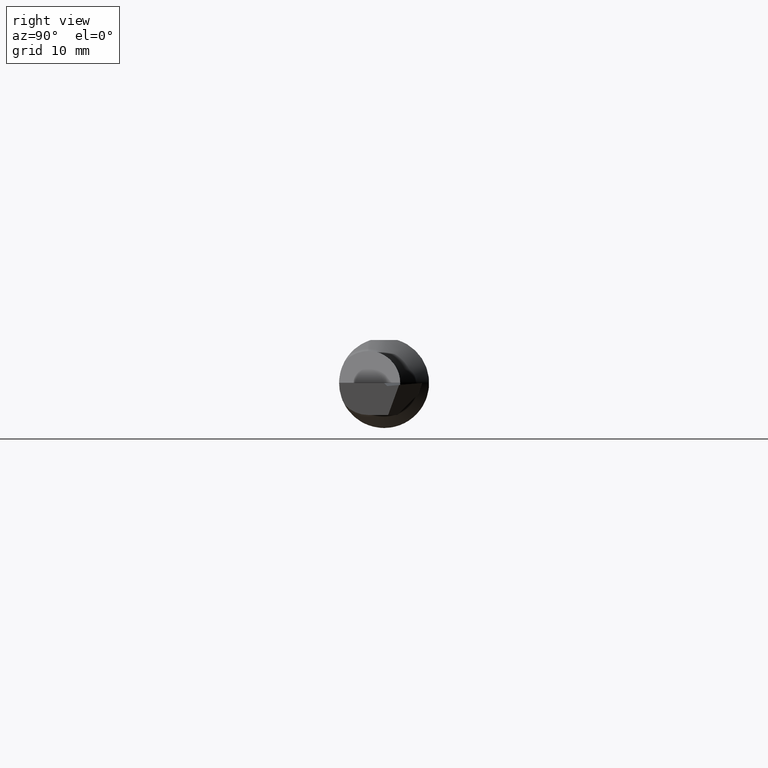
[diagram: clean part render]
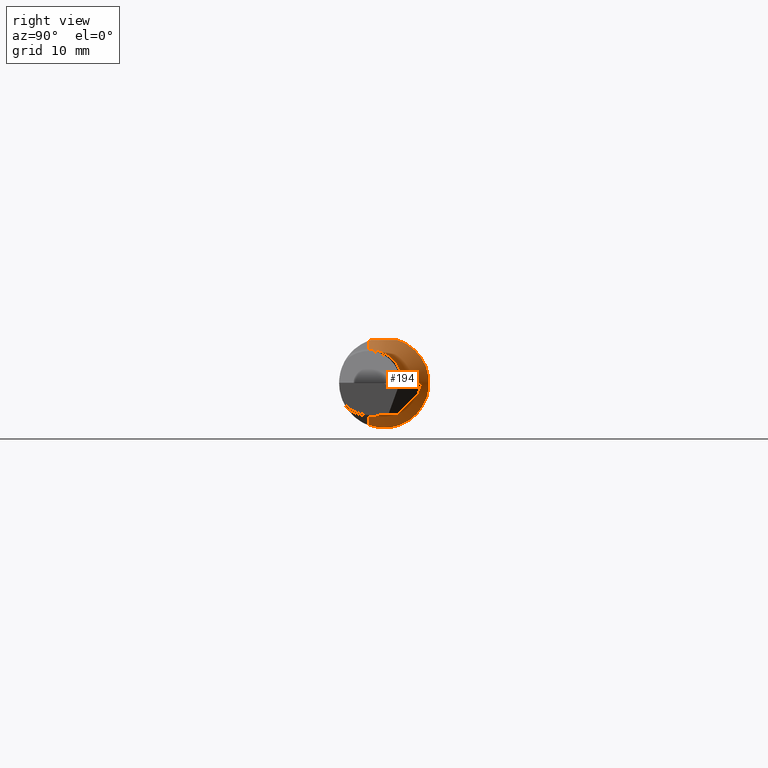
[diagram: same view with one face highlighted and labeled with its STEP entity id]
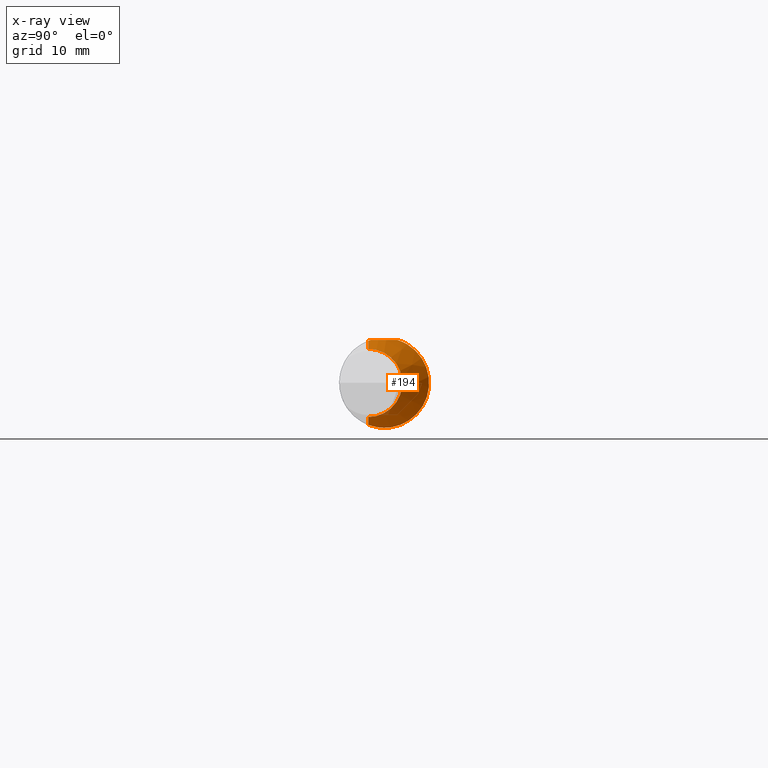
[diagram: x-ray of the same camera — body ghosted, the highlighted face saturated]
A machine part, right view. The second image highlights one B-rep face of the part: STEP entity #194.
The next image is the same camera in x-ray: the body ghosted, the highlighted face saturated — about 19% of this face is hidden behind the body in this view.
In plain terms, the highlighted conical surface has half-angle 45 deg.
Its self-contained STEP definition (entity closure, byte-faithful):
#49 = CARTESIAN_POINT ( 'NONE',  ( 1.369947954481972152, -0.05509999999999988518, -0.1460520455180277233 ) ) ;
#50 = ORIENTED_EDGE ( 'NONE', *, *, #137, .T. ) ;
#52 = CARTESIAN_POINT ( 'NONE',  ( 1.366635871238674582, -0.04622120725381386602, 0.1490999999999999270 ) ) ;
#62 = CARTESIAN_POINT ( 'NONE',  ( 1.324548691111764764, 0.08387758383247832794, 0.1320588108186686593 ) ) ;
#64 = CARTESIAN_POINT ( 'NONE',  ( 1.367743472878949706, -0.04922367465879127352, 0.1481692309309302902 ) ) ;
#66 = CARTESIAN_POINT ( 'NONE',  ( 1.332717130590346910, 0.05608262143449922743, 0.1460429478963033156 ) ) ;
#68 = VERTEX_POINT ( 'NONE', #142 ) ;
#70 = CIRCLE ( 'NONE', #770, 0.1183223304703364259 ) ;
#79 = CARTESIAN_POINT ( 'NONE',  ( 1.308238439965468070, 0.1430193460246382831, -0.06343701998802300790 ) ) ;
#84 = CARTESIAN_POINT ( 'NONE',  ( 1.336370617195300259, 0.04404636233410041263, -0.1501015177063665662 ) ) ;
#123 = CARTESIAN_POINT ( 'NONE',  ( 1.362876243189713676, -0.03601116808314813733, -0.1522199949055717816 ) ) ;
#127 = CARTESIAN_POINT ( 'NONE',  ( 1.204999999999998073, -0.05509999999999982967, 0.3109999999999998321 ) ) ;
#136 = DIRECTION ( 'NONE',  ( 0.000000000000000000, 0.000000000000000000, 1.000000000000000000 ) ) ;
#137 = EDGE_CURVE ( 'NONE', #336, #1004, #70, .T. ) ;
#142 = CARTESIAN_POINT ( 'NONE',  ( 1.366635871238674582, -0.04622120725381386602, 0.1490999999999999270 ) ) ;
#153 = EDGE_CURVE ( 'NONE', #68, #949, #479, .T. ) ;
#156 = CARTESIAN_POINT ( 'NONE',  ( 1.204999999999998073, -0.05509999999999982967, 0.000000000000000000 ) ) ;
#171 = CARTESIAN_POINT ( 'NONE',  ( 1.350825235768600363, 0.01741984689341649281, 0.1490999999999998993 ) ) ;
#194 = ADVANCED_FACE ( 'NONE', ( #366 ), #602, .T. ) ;
#200 = CARTESIAN_POINT ( 'NONE',  ( 1.204999999999998073, -0.05509999999999979498, -0.3109999999999998321 ) ) ;
#205 = AXIS2_PLACEMENT_3D ( 'NONE', #156, #548, #253 ) ;
#213 = CARTESIAN_POINT ( 'NONE',  ( 1.352444014235175240, -0.006023535698148726331, -0.1563110501433992716 ) ) ;
#225 = VECTOR ( 'NONE', #451, 39.37007874015748143 ) ;
#230 = CARTESIAN_POINT ( 'NONE',  ( 1.322111493183075304, 0.09241859738491080278, 0.1262303666906479382 ) ) ;
#249 = CARTESIAN_POINT ( 'NONE',  ( 1.364992327536548533, -0.02989759620680065844, 0.1490999999999999270 ) ) ;
#251 = CARTESIAN_POINT ( 'NONE',  ( 1.333366277754984841, 0.05393928263266121320, -0.1468426572203956615 ) ) ;
#253 = DIRECTION ( 'NONE',  ( 0.000000000000000000, 0.000000000000000000, 1.000000000000000000 ) ) ;
#272 = EDGE_CURVE ( 'NONE', #390, #68, #752, .T. ) ;
#275 = VECTOR ( 'NONE', #610, 39.37007874015748143 ) ;
#304 = CARTESIAN_POINT ( 'NONE',  ( 1.335731319860130828, 0.04622120725381387296, 0.1490999999999999270 ) ) ;
#321 = CARTESIAN_POINT ( 'NONE',  ( 1.304825678371061226, 0.1560001080571325471, -0.01202898505658657122 ) ) ;
#336 = VERTEX_POINT ( 'NONE', #662 ) ;
#366 = FACE_OUTER_BOUND ( 'NONE', #789, .T. ) ;
#382 = CARTESIAN_POINT ( 'NONE',  ( 1.306943772126054615, 0.1479197732258280551, 0.05098120130938362665 ) ) ;
#390 = VERTEX_POINT ( 'NONE', #430 ) ;
#393 = CARTESIAN_POINT ( 'NONE',  ( 1.361455283410027306, -0.01367641444778829041, 0.1490999999999999548 ) ) ;
#401 = CARTESIAN_POINT ( 'NONE',  ( 1.315588306671178431, 0.1157756030439725942, 0.1052293854065042000 ) ) ;
#407 = CARTESIAN_POINT ( 'NONE',  ( 1.327799391749285407, 0.07267242641550480942, -0.1385313344675339065 ) ) ;
#426 = VERTEX_POINT ( 'NONE', #917 ) ;
#430 = CARTESIAN_POINT ( 'NONE',  ( 1.335731319860130828, 0.04622120725381387296, 0.1490999999999999270 ) ) ;
#451 = DIRECTION ( 'NONE',  ( -0.7071067811865514585, 8.659560562354884787E-17, -0.7071067811865435759 ) ) ;
#461 = EDGE_CURVE ( 'NONE', #1004, #426, #920, .T. ) ;
#475 = B_SPLINE_CURVE_WITH_KNOTS ( 'NONE', 3,
 ( #49, #846, #123, #933, #213, #528, #849, #84, #251, #407, #797, #1045, #546, #869, #875, #950, #79, #713, #803, #321, #787, #643, #725, #382, #882, #1032, #567, #401, #649, #230, #62, #485, #66, #304 ),
 .UNSPECIFIED., .F., .F.,
 ( 4, 2, 2, 2, 2, 2, 2, 2, 2, 2, 2, 2, 2, 2, 2, 2, 4 ),
 ( 0.002933762473820768560, 0.003742031587728699305, 0.004550300701636630918, 0.005358569815544561230, 0.006166838929452493276, 0.006975108043360423588, 0.007783377157268354767, 0.008591646271176284211, 0.009399915385084216257, 0.01020818449899214657, 0.01101645361290007688, 0.01182472272680800719, 0.01263299184071593924, 0.01344126095462386955, 0.01424953006853179986, 0.01505779918243973191, 0.01586606829634766222 ),
 .UNSPECIFIED. ) ;
#477 = CARTESIAN_POINT ( 'NONE',  ( 1.335731319860130828, 0.04622120725381387296, 0.1490999999999999270 ) ) ;
#479 = B_SPLINE_CURVE_WITH_KNOTS ( 'NONE', 3,
 ( #52, #64, #843, #856 ),
 .UNSPECIFIED., .F., .F.,
 ( 4, 4 ),
 ( 7.061912593287633053E-07, 0.0002510725968033621254 ),
 .UNSPECIFIED. ) ;
#485 = CARTESIAN_POINT ( 'NONE',  ( 1.329868065766410368, 0.06565156991703995082, 0.1420029927566434647 ) ) ;
#515 = CARTESIAN_POINT ( 'NONE',  ( 1.369947954481972152, -0.05510000000000016968, 0.1460520455180288335 ) ) ;
#528 = CARTESIAN_POINT ( 'NONE',  ( 1.345770450437745680, 0.01419006742947593290, -0.1557821214568157198 ) ) ;
#535 = CARTESIAN_POINT ( 'NONE',  ( 1.397677669529663769, -0.05509999999999982967, 0.000000000000000000 ) ) ;
#536 = EDGE_CURVE ( 'NONE', #336, #949, #1013, .T. ) ;
#546 = CARTESIAN_POINT ( 'NONE',  ( 1.318136278873995204, 0.1065604417534539439, -0.1145449302933602004 ) ) ;
#548 = DIRECTION ( 'NONE',  ( -1.000000000000000000, -0.000000000000000000, -0.000000000000000000 ) ) ;
#561 = ORIENTED_EDGE ( 'NONE', *, *, #153, .T. ) ;
#567 = CARTESIAN_POINT ( 'NONE',  ( 1.312035635856389382, 0.1288120369603221183, 0.08879568090486569809 ) ) ;
#602 = CONICAL_SURFACE ( 'NONE', #205, 0.3109999999999998321, 0.7853981633974427279 ) ;
#610 = DIRECTION ( 'NONE',  ( -0.7071067811865514585, 0.000000000000000000, 0.7071067811865435759 ) ) ;
#632 = CARTESIAN_POINT ( 'NONE',  ( 1.343705498961929035, 0.03203370612900885428, 0.1490999999999999270 ) ) ;
#637 = ORIENTED_EDGE ( 'NONE', *, *, #272, .T. ) ;
#641 = EDGE_CURVE ( 'NONE', #426, #390, #475, .T. ) ;
#643 = CARTESIAN_POINT ( 'NONE',  ( 1.305035562186708686, 0.1551973409643579715, 0.01987069930676312393 ) ) ;
#649 = CARTESIAN_POINT ( 'NONE',  ( 1.317637727932546188, 0.1083427162965807794, 0.1128590202107402907 ) ) ;
#662 = CARTESIAN_POINT ( 'NONE',  ( 1.397677669529663769, -0.05509999999999982967, 0.1183223304703364259 ) ) ;
#689 = ORIENTED_EDGE ( 'NONE', *, *, #641, .T. ) ;
#709 = CARTESIAN_POINT ( 'NONE',  ( 1.366635871238674582, -0.04622120725381386602, 0.1490999999999999270 ) ) ;
#713 = CARTESIAN_POINT ( 'NONE',  ( 1.306326481736836076, 0.1502618000434304268, -0.04359105745430099516 ) ) ;
#725 = CARTESIAN_POINT ( 'NONE',  ( 1.305491321236808888, 0.1534496953831913368, 0.03053740632296880753 ) ) ;
#752 = B_SPLINE_CURVE_WITH_KNOTS ( 'NONE', 3,
 ( #477, #632, #171, #972, #393, #249, #800, #709 ),
 .UNSPECIFIED., .F., .F.,
 ( 4, 2, 2, 4 ),
 ( 0.004170257919704616414, 0.005419282688077418919, 0.006043795072263820171, 0.006668307456450221424 ),
 .UNSPECIFIED. ) ;
#770 = AXIS2_PLACEMENT_3D ( 'NONE', #535, #1010, #136 ) ;
#783 = ORIENTED_EDGE ( 'NONE', *, *, #461, .T. ) ;
#787 = CARTESIAN_POINT ( 'NONE',  ( 1.304706639062241935, 0.1564576890087830685, -0.001432090562047936633 ) ) ;
#789 = EDGE_LOOP ( 'NONE', ( #50, #783, #689, #637, #561, #855 ) ) ;
#797 = CARTESIAN_POINT ( 'NONE',  ( 1.325205725379794641, 0.08160962841902985598, -0.1334729144958974600 ) ) ;
#800 = CARTESIAN_POINT ( 'NONE',  ( 1.366149622418283860, -0.03804125154417743043, 0.1490999999999999548 ) ) ;
#803 = CARTESIAN_POINT ( 'NONE',  ( 1.305631178330442399, 0.1529188650008317940, -0.03311421027574131676 ) ) ;
#843 = CARTESIAN_POINT ( 'NONE',  ( 1.368847452044276158, -0.05218292863660520947, 0.1471525479557234117 ) ) ;
#846 = CARTESIAN_POINT ( 'NONE',  ( 1.366390666311418700, -0.04567079466777374669, -0.1496093336885842284 ) ) ;
#849 = CARTESIAN_POINT ( 'NONE',  ( 1.342562882557629900, 0.02420714763283983786, -0.1545463090989346311 ) ) ;
#855 = ORIENTED_EDGE ( 'NONE', *, *, #536, .F. ) ;
#856 = CARTESIAN_POINT ( 'NONE',  ( 1.369947954481972152, -0.05510000000000016968, 0.1460520455180288335 ) ) ;
#869 = CARTESIAN_POINT ( 'NONE',  ( 1.314201075398399698, 0.1208322551158216573, -0.09937421660685928637 ) ) ;
#875 = CARTESIAN_POINT ( 'NONE',  ( 1.312466943666290575, 0.1272252589142018608, -0.09107358582682749393 ) ) ;
#881 = CARTESIAN_POINT ( 'NONE',  ( 1.397677669529663769, -0.05509999999999980885, -0.1183223304703364259 ) ) ;
#882 = CARTESIAN_POINT ( 'NONE',  ( 1.307949842719563716, 0.1441017141000177637, 0.06095261037131195075 ) ) ;
#917 = CARTESIAN_POINT ( 'NONE',  ( 1.369947954481972152, -0.05509999999999988518, -0.1460520455180277233 ) ) ;
#920 = LINE ( 'NONE', #200, #225 ) ;
#933 = CARTESIAN_POINT ( 'NONE',  ( 1.355920490905884179, -0.01624198176629356935, -0.1555761199672637263 ) ) ;
#949 = VERTEX_POINT ( 'NONE', #515 ) ;
#950 = CARTESIAN_POINT ( 'NONE',  ( 1.309459294620472836, 0.1384172549045074863, -0.07294743371663475751 ) ) ;
#972 = CARTESIAN_POINT ( 'NONE',  ( 1.359095431277676846, -0.005703213165482817065, 0.1490999999999999548 ) ) ;
#1004 = VERTEX_POINT ( 'NONE', #881 ) ;
#1010 = DIRECTION ( 'NONE',  ( -1.000000000000000000, -0.000000000000000000, -0.000000000000000000 ) ) ;
#1013 = LINE ( 'NONE', #127, #275 ) ;
#1032 = CARTESIAN_POINT ( 'NONE',  ( 1.310510350944155133, 0.1344930745780571479, 0.07995084494976510692 ) ) ;
#1045 = CARTESIAN_POINT ( 'NONE',  ( 1.320366644445166271, 0.09857836324474331113, -0.1214802726977047692 ) ) ;